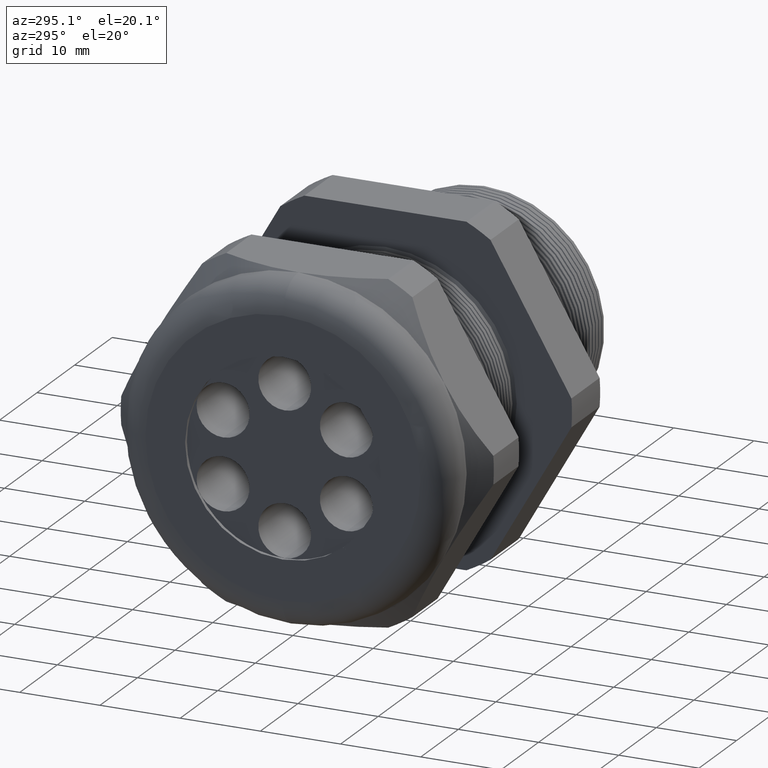
[diagram: clean part render]
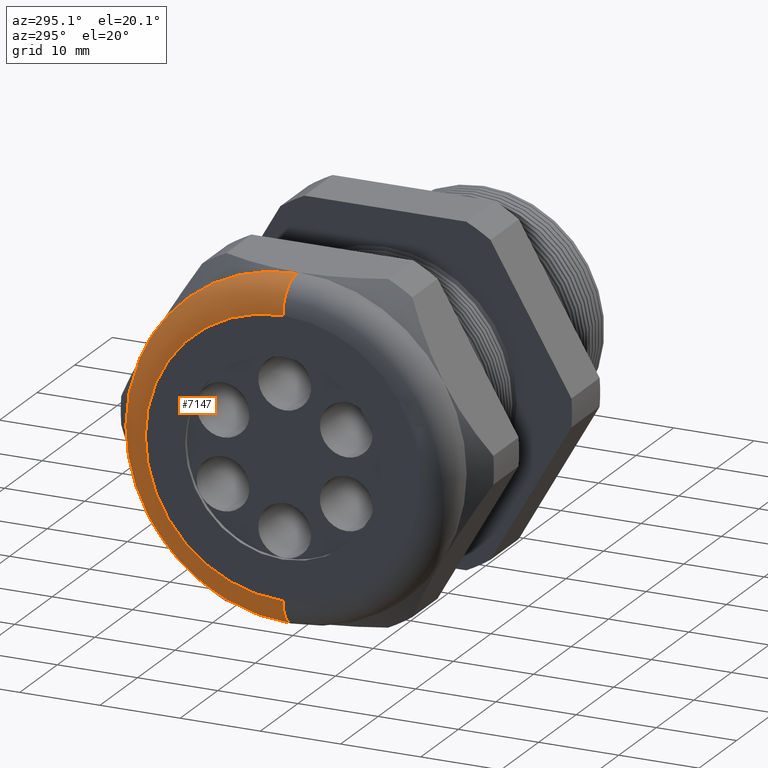
[diagram: same view with one face highlighted and labeled with its STEP entity id]
A machine part, auxiliary view. The second image highlights one B-rep face of the part: STEP entity #7147.
In plain terms, the highlighted toroidal blend (fillet) surface has major radius 17.145 mm and minor (blend) radius 3.81 mm.
Its self-contained STEP definition (entity closure, byte-faithful):
#2554 = TOROIDAL_SURFACE ( 'NONE', #2617, 0.6749999999999997100, 0.1499999999999999900 ) ;
#2555 = FACE_OUTER_BOUND ( 'NONE', #7141, .T. ) ;
#2560 = CARTESIAN_POINT ( 'NONE',  ( -1.530000000000000000, 0.0000000000000000000, -0.8249999999999998400 ) ) ;
#2566 = DIRECTION ( 'NONE',  ( 0.0000000000000000000, 0.0000000000000000000, 1.000000000000000000 ) ) ;
#2567 = DIRECTION ( 'NONE',  ( 1.000000000000000000, 0.0000000000000000000, 0.0000000000000000000 ) ) ;
#2568 = CARTESIAN_POINT ( 'NONE',  ( -1.530000000000000000, 0.0000000000000000000, 0.0000000000000000000 ) ) ;
#2569 = AXIS2_PLACEMENT_3D ( 'NONE', #2568, #2567, #2566 ) ;
#2570 = CIRCLE ( 'NONE', #2569, 0.8249999999999998400 ) ;
#2614 = DIRECTION ( 'NONE',  ( 0.0000000000000000000, 0.0000000000000000000, 1.000000000000000000 ) ) ;
#2615 = DIRECTION ( 'NONE',  ( -1.000000000000000000, 0.0000000000000000000, 0.0000000000000000000 ) ) ;
#2616 = CARTESIAN_POINT ( 'NONE',  ( -1.530000000000000000, 0.0000000000000000000, 0.0000000000000000000 ) ) ;
#2617 = AXIS2_PLACEMENT_3D ( 'NONE', #2616, #2615, #2614 ) ;
#2888 = CARTESIAN_POINT ( 'NONE',  ( -1.680000000000000200, 0.0000000000000000000, 0.6749999999999997100 ) ) ;
#2930 = DIRECTION ( 'NONE',  ( 0.0000000000000000000, 0.0000000000000000000, -1.000000000000000000 ) ) ;
#2931 = DIRECTION ( 'NONE',  ( 0.0000000000000000000, -1.000000000000000000, 0.0000000000000000000 ) ) ;
#2932 = CARTESIAN_POINT ( 'NONE',  ( -1.530000000000000000, 0.0000000000000000000, 0.6749999999999997100 ) ) ;
#2933 = AXIS2_PLACEMENT_3D ( 'NONE', #2932, #2931, #2930 ) ;
#2934 = CIRCLE ( 'NONE', #2933, 0.1499999999999999700 ) ;
#2971 = DIRECTION ( 'NONE',  ( 0.0000000000000000000, 0.0000000000000000000, 1.000000000000000000 ) ) ;
#2972 = DIRECTION ( 'NONE',  ( -1.000000000000000000, 0.0000000000000000000, 0.0000000000000000000 ) ) ;
#2973 = CARTESIAN_POINT ( 'NONE',  ( -1.680000000000000200, 0.0000000000000000000, 0.0000000000000000000 ) ) ;
#2974 = AXIS2_PLACEMENT_3D ( 'NONE', #2973, #2972, #2971 ) ;
#2975 = CIRCLE ( 'NONE', #2974, 0.6749999999999997100 ) ;
#2976 = CARTESIAN_POINT ( 'NONE',  ( -1.680000000000000200, 9.184850993605146000E-017, -0.6749999999999997100 ) ) ;
#3981 = EDGE_CURVE ( 'NONE', #7145, #7324, #6675, .T. ) ;
#4417 = ORIENTED_EDGE ( 'NONE', *, *, #3981, .T. ) ;
#4420 = VERTEX_POINT ( 'NONE', #6713 ) ;
#6671 = DIRECTION ( 'NONE',  ( 0.0000000000000000000, -1.224646799147353200E-016, 1.000000000000000000 ) ) ;
#6672 = DIRECTION ( 'NONE',  ( 0.0000000000000000000, 1.000000000000000000, 1.224646799147353200E-016 ) ) ;
#6673 = CARTESIAN_POINT ( 'NONE',  ( -1.530000000000000000, 8.266365894244631900E-017, -0.6749999999999997100 ) ) ;
#6674 = AXIS2_PLACEMENT_3D ( 'NONE', #6673, #6672, #6671 ) ;
#6675 = CIRCLE ( 'NONE', #6674, 0.1499999999999999700 ) ;
#6713 = CARTESIAN_POINT ( 'NONE',  ( -1.530000000000000000, 1.010333609296566100E-016, 0.8249999999999998400 ) ) ;
#7140 = EDGE_CURVE ( 'NONE', #7145, #4420, #2570, .T. ) ;
#7141 = EDGE_LOOP ( 'NONE', ( #7150, #4417, #7326, #7292 ) ) ;
#7145 = VERTEX_POINT ( 'NONE', #2560 ) ;
#7147 = ADVANCED_FACE ( 'NONE', ( #2555 ), #2554, .T. ) ;
#7150 = ORIENTED_EDGE ( 'NONE', *, *, #7140, .F. ) ;
#7290 = VERTEX_POINT ( 'NONE', #2888 ) ;
#7292 = ORIENTED_EDGE ( 'NONE', *, *, #7320, .F. ) ;
#7320 = EDGE_CURVE ( 'NONE', #4420, #7290, #2934, .T. ) ;
#7324 = VERTEX_POINT ( 'NONE', #2976 ) ;
#7326 = ORIENTED_EDGE ( 'NONE', *, *, #7327, .F. ) ;
#7327 = EDGE_CURVE ( 'NONE', #7290, #7324, #2975, .T. ) ;